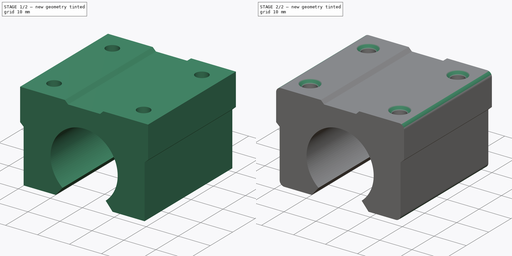
[diagram: build sequence overview — one tinted view per stage of 2, left to right]
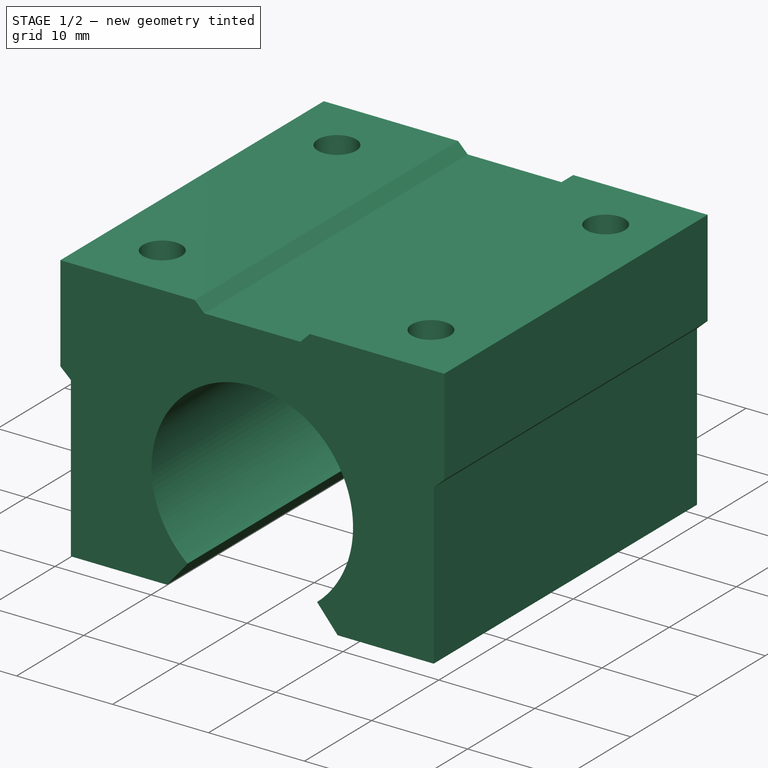
[diagram: stage 1 of 2 — iso view after this stage's code; geometry added in this stage tinted green]
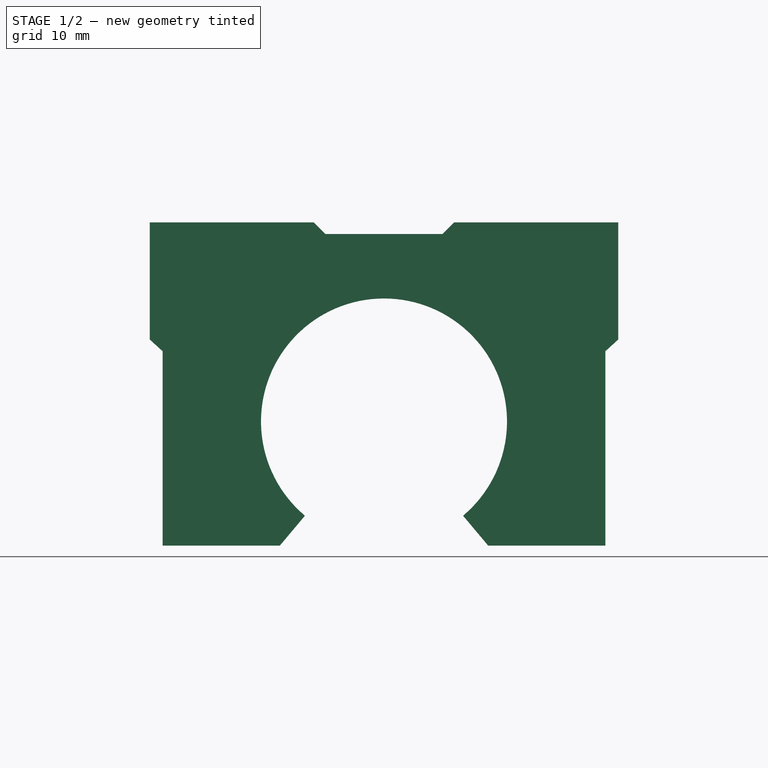
[diagram: stage 1 of 2 — front view after this stage's code; geometry added in this stage tinted green]
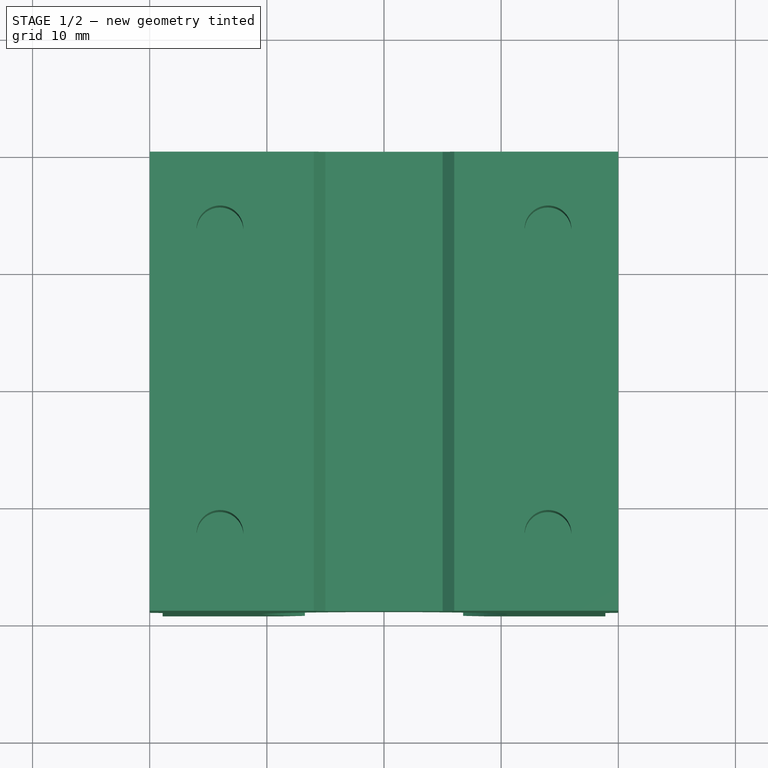
[diagram: stage 1 of 2 — top view after this stage's code; geometry added in this stage tinted green]
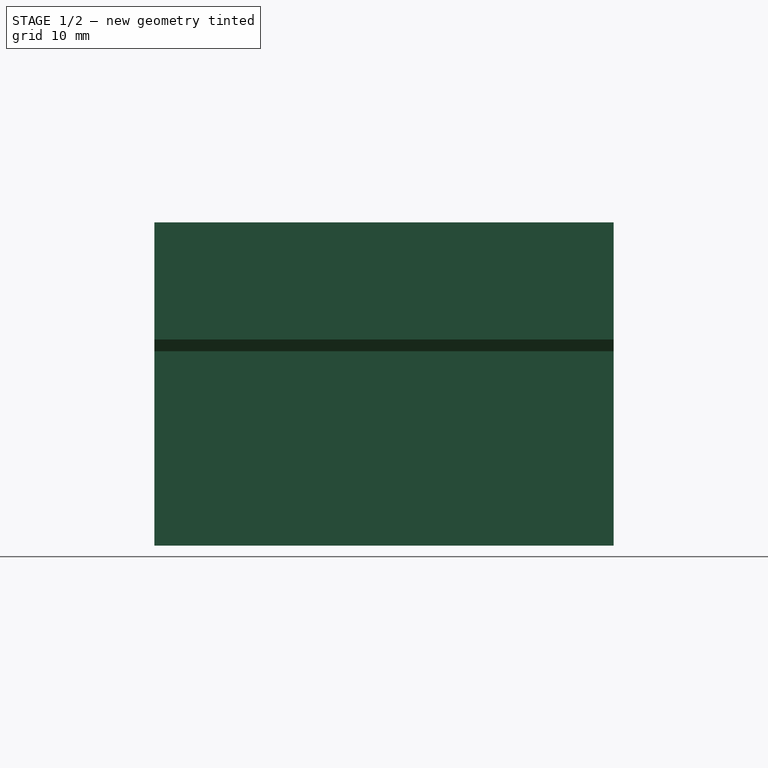
[diagram: stage 1 of 2 — right view after this stage's code; geometry added in this stage tinted green]
FCSTD DOCUMENT  (FreeCAD 0.16R6706 (Git))
Label: SBR12uu
License: All rights reserved
LicenseURL: http://en.wikipedia.org/wiki/All_rights_reserved
objects: Sketcher::SketchObject×2, PartDesign::Pad×1, Part::Feature×1, PartDesign::Pocket×1, PartDesign::Chamfer×1, PartDesign::Fillet×1
note: 9 computed .brp shape members not serialized (recipe doc carries the construction recipe); baked Part::Feature solids carry a one-line shape summary decoded from their .brp

FEATURE [Sketcher::SketchObject] Sketch  label="profil"
  Placement = pos=(0,0,0) rot=(1,0,0;1.5708rad)
  sketch-geometry (24):
    g0: ArcOfCircle CenterX=0 CenterY=0 CenterZ=0 NormalX=0 NormalY=0 NormalZ=1 Radius=10.5 StartAngle=5.41052 EndAngle=10.2974
    g1: LineSegment [constr] StartX=-18.9 StartY=0 StartZ=0 EndX=18.9 EndY=0 EndZ=0
    g2: LineSegment StartX=-20 StartY=17 StartZ=0 EndX=-6 EndY=17 EndZ=0
    g3: LineSegment StartX=-6 StartY=17 StartZ=0 EndX=-5 EndY=16 EndZ=0
    g4: LineSegment StartX=-5 StartY=16 StartZ=0 EndX=5 EndY=16 EndZ=0
    g5: LineSegment StartX=5 StartY=16 StartZ=0 EndX=6 EndY=17 EndZ=0
    g6: LineSegment StartX=6 StartY=17 StartZ=0 EndX=20 EndY=17 EndZ=0
    g7: LineSegment StartX=20 StartY=17 StartZ=0 EndX=20 EndY=7 EndZ=0
    g8: LineSegment StartX=20 StartY=7 StartZ=0 EndX=18.9 EndY=6 EndZ=0
    g9: LineSegment StartX=18.9 StartY=6 StartZ=0 EndX=18.9 EndY=-10.6 EndZ=0
    g10: LineSegment StartX=-18.9 StartY=-10.6 StartZ=0 EndX=-18.9 EndY=6 EndZ=0
    g11: LineSegment StartX=-18.9 StartY=6 StartZ=0 EndX=-20 EndY=7 EndZ=0
    g12: LineSegment StartX=-20 StartY=7 StartZ=0 EndX=-20 EndY=17 EndZ=0
    g13: LineSegment [constr] StartX=-18.9 StartY=-10.6 StartZ=0 EndX=18.9 EndY=-10.6 EndZ=0
    g14: LineSegment [constr] StartX=-20 StartY=17 StartZ=0 EndX=20 EndY=17 EndZ=0
    g15: GeomPoint [constr] X=0 Y=16 Z=0
    g16: LineSegment [constr] StartX=-20 StartY=7 StartZ=0 EndX=20 EndY=7 EndZ=0
    g17: LineSegment StartX=-18.9 StartY=-10.6 StartZ=0 EndX=-8.89446 EndY=-10.6 EndZ=0
    g18: LineSegment StartX=18.9 StartY=-10.6 StartZ=0 EndX=8.89446 EndY=-10.6 EndZ=0
    g19: LineSegment [constr] StartX=0 StartY=0 StartZ=0 EndX=-8.89446 EndY=-10.6 EndZ=0
    g20: LineSegment [constr] StartX=0 StartY=0 StartZ=0 EndX=8.89446 EndY=-10.6 EndZ=0
    g21: LineSegment StartX=-6.74927 StartY=-8.04347 StartZ=0 EndX=-8.89446 EndY=-10.6 EndZ=0
    g22: LineSegment StartX=6.74927 StartY=-8.04347 StartZ=0 EndX=8.89446 EndY=-10.6 EndZ=0
    g23: LineSegment [constr] StartX=-18.9 StartY=6 StartZ=0 EndX=18.9 EndY=6 EndZ=0
  constraints (66):
    c: Radius(g0) = 10.5
    c: Vertical(g10)
    c: Coincident(g13,g10)
    c: Coincident(g9,g13)
    c: Horizontal(g13)
    c: Equal(g2,g6)
    c: Horizontal(g2)
    c: Horizontal(g6)
    c: Horizontal(g4)
    c: Coincident(g4,g5)
    c: Coincident(g5,g6)
    c: Coincident(g3,g2)
    c: Coincident(g3,g4)
    c: Coincident(g12,g2)
    c: Coincident(g12,g11)
    c: Vertical(g12)
    c: Coincident(g11,g10)
    c: Coincident(g6,g7)
    c: Vertical(g7)
    c: Coincident(g7,g8)
    c: Coincident(g8,g9)
    c: Vertical(g9)
    c: Equal(g11,g8)
    c: Coincident(g14,g2)
    c: Coincident(g14,g6)
    c: Horizontal(g14)
    c: PointOnObject(g15,g4)
    c: Symmetric(g4,g4,g15)
    c: PointOnObject(g15,g-2)
    c: Coincident(g16,g7)
    c: Horizontal(g16)
    c: Coincident(g11,g16)
    c: PointOnObject(g1,g10)
    c: PointOnObject(g1,g9)
    c: DistanceX(g2,g6) = 40
    c: DistanceY(g4,g5) = 1
    c: DistanceY(g1,g6) = 17
    c: Horizontal(g1)
    c: Coincident(g0,g-1)
    c: PointOnObject(g-1,g1)
    c: DistanceY(g7,g6) = 10
    c: DistanceY(g9,g6) = 27.6
    c: DistanceX(g13,g13) = 37.8
    c: DistanceX(g5,g6) = 14
    c: Coincident(g17,g10)
    c: Coincident(g18,g9)
    c: Coincident(g19,g-1)
    c: PointOnObject(g19,g13)
    c: PointOnObject(g20,g13)
    c: Angle(g19,g20) = 1.39626
    c: PointOnObject(g0,g20)
    c: PointOnObject(g0,g19)
    c: Coincident(g17,g19)
    c: Coincident(g18,g20)
    c: Equal(g17,g18)
    c: Coincident(g20,g-1)
    c: Coincident(g21,g0)
    c: Coincident(g21,g17)
    c: Coincident(g22,g0)
    c: Coincident(g22,g18)
    c: Coincident(g23,g10)
    c: Coincident(g23,g8)
    c: Horizontal(g23)
    c: DistanceY(g8,g6) = 11
    c: DistanceX(g4,g5) = 1
    c: DistanceX(g2,g3) = 1
FEATURE [PartDesign::Pad] Pad
  Length = 39.2
  Length2 = 100
  Placement = pos=(0,0,0) rot=(1,0,0;1.5708rad)
  Sketch = -> Sketch
  Type = 0
FEATURE [Part::Feature] Part__Feature  label="LM12uu001"
  Placement = pos=(-1.3,-17,0) rot=(0,0,1;0rad)
  shape: bbox 21 x 30 x 21 mm, 20 faces (baked)
FEATURE [Sketcher::SketchObject] Sketch001
  ExternalGeometry = -> [Pad]
  Placement = pos=(0,0,17) rot=(0,0,1;3.14159rad)
  Support = -> Pad [Face7]
  sketch-geometry (9):
    g0: GeomPoint [constr] X=-6 Y=19.6 Z=0
    g1: LineSegment [constr] StartX=-14 StartY=19.6 StartZ=0 EndX=14 EndY=19.6 EndZ=0
    g2: GeomPoint [constr] X=0 Y=19.6 Z=0
    g3: LineSegment [constr] StartX=-14 StartY=32.6 StartZ=0 EndX=-14 EndY=6.6 EndZ=0
    g4: LineSegment [constr] StartX=14 StartY=32.6 StartZ=0 EndX=14 EndY=6.6 EndZ=0
    g5: Circle CenterX=-14 CenterY=32.6 CenterZ=0 NormalX=0 NormalY=0 NormalZ=1 Radius=2
    g6: Circle CenterX=-14 CenterY=6.6 CenterZ=0 NormalX=0 NormalY=0 NormalZ=1 Radius=2
    g7: Circle CenterX=14 CenterY=32.6 CenterZ=0 NormalX=0 NormalY=0 NormalZ=1 Radius=2
    g8: Circle CenterX=14 CenterY=6.6 CenterZ=0 NormalX=0 NormalY=0 NormalZ=1 Radius=2
  constraints (24):
    c: PointOnObject(g0,g-3)
    c: Symmetric(g-3,g-3,g0)
    c: Horizontal(g1)
    c: PointOnObject(g0,g1)
    c: PointOnObject(g2,g-2)
    c: PointOnObject(g2,g1)
    c: Symmetric(g1,g1,g2)
    c: DistanceX(g1,g1) = 28
    c: Vertical(g3)
    c: Vertical(g4)
    c: PointOnObject(g1,g3)
    c: PointOnObject(g1,g4)
    c: Symmetric(g4,g4,g1)
    c: Symmetric(g3,g3,g1)
    c: Equal(g3,g4)
    c: DistanceY(g3,g3) = 26
    c: Coincident(g5,g3)
    c: Coincident(g6,g3)
    c: Coincident(g7,g4)
    c: Coincident(g8,g4)
    c: Equal(g5,g6)
    c: Equal(g6,g8)
    c: Equal(g8,g7)
    c: Radius(g5) = 2
FEATURE [PartDesign::Pocket] Pocket
  Length = 10
  Placement = pos=(0,0,0) rot=(1,0,0;1.5708rad)
  Sketch = -> Sketch001
  Type = 0
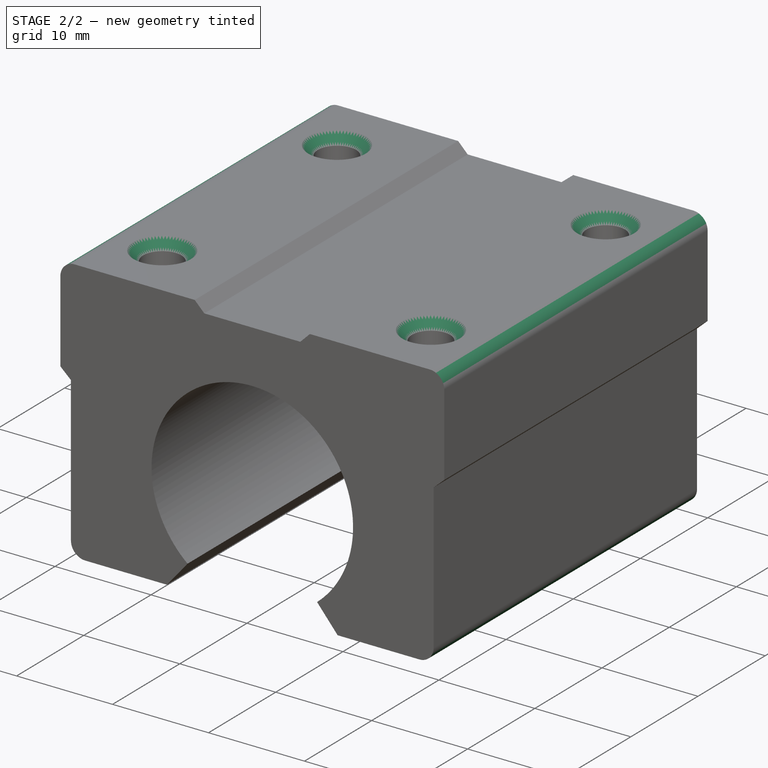
[diagram: stage 2 of 2 — iso view after this stage's code; geometry added in this stage tinted green]
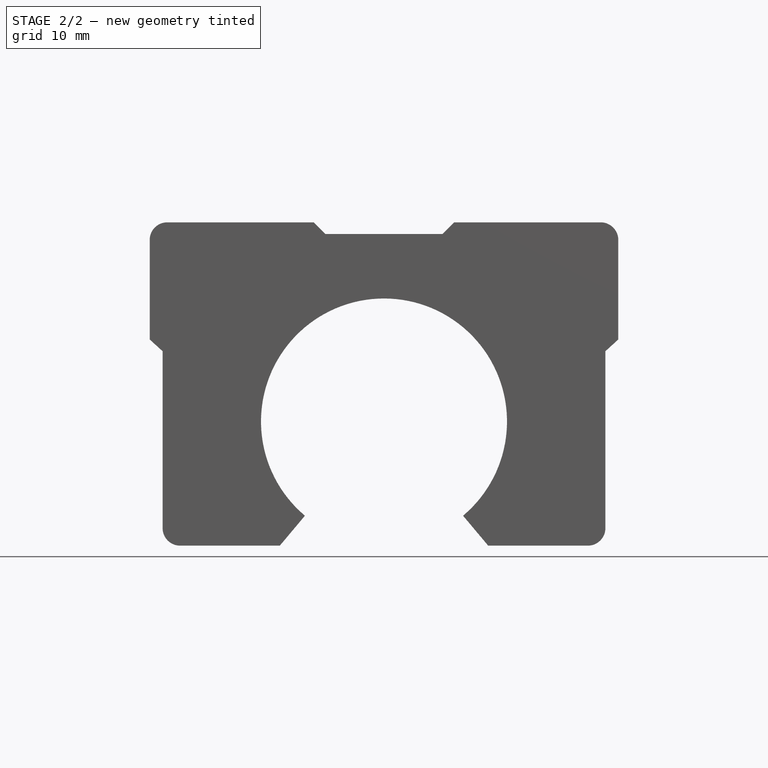
[diagram: stage 2 of 2 — front view after this stage's code; geometry added in this stage tinted green]
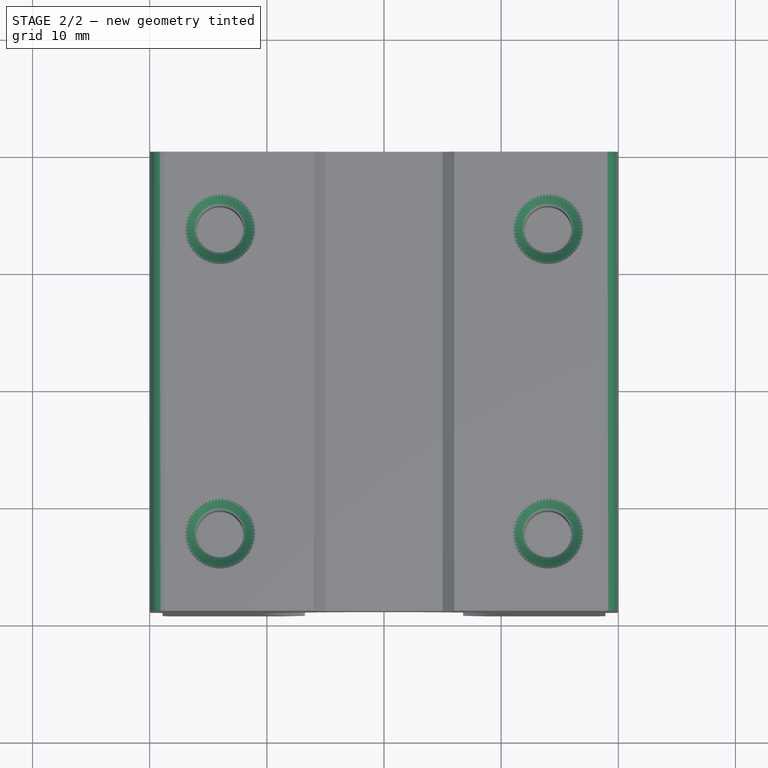
[diagram: stage 2 of 2 — top view after this stage's code; geometry added in this stage tinted green]
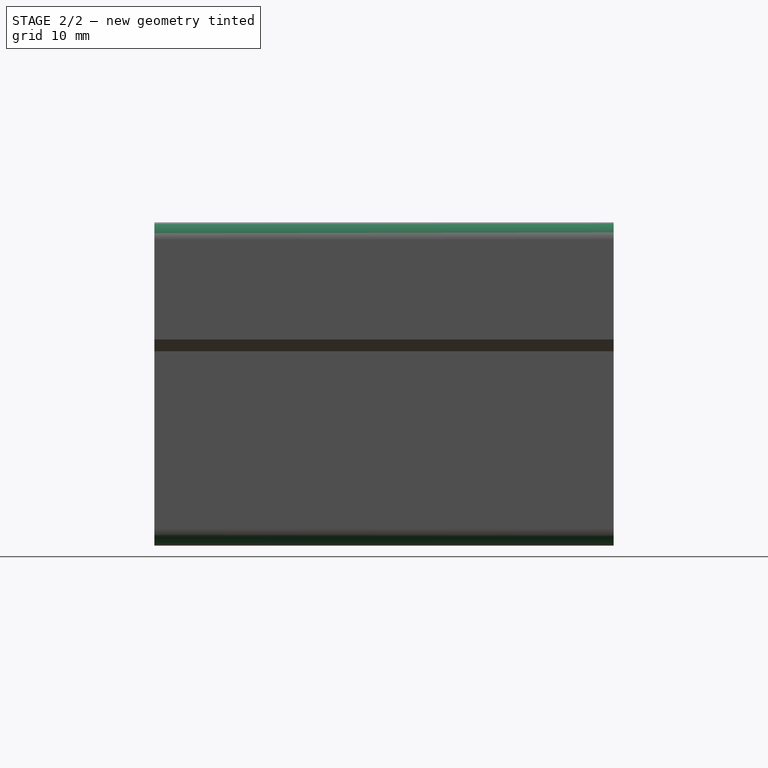
[diagram: stage 2 of 2 — right view after this stage's code; geometry added in this stage tinted green]
FEATURE [PartDesign::Chamfer] Chamfer
  Base = -> Pocket [Edge50,Edge49,Edge43,Edge44]
  Placement = pos=(0,0,0) rot=(1,0,0;1.5708rad)
  Size = 1
FEATURE [PartDesign::Fillet] Fillet
  Base = -> Chamfer [Edge53,Edge2,Edge49,Edge57]
  Placement = pos=(0,0,0) rot=(1,0,0;1.5708rad)
  Radius = 1.5
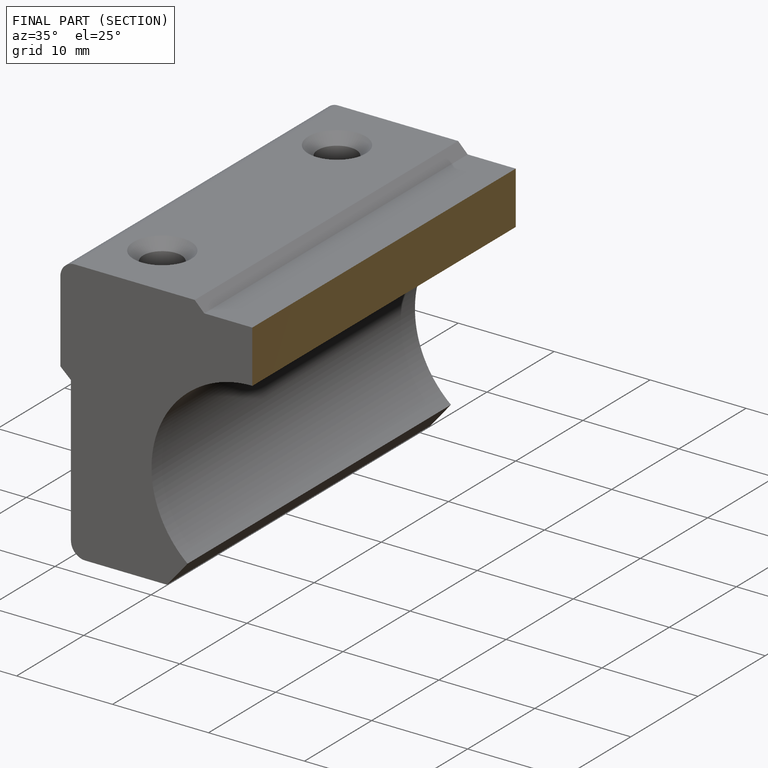
[diagram: finished part — half-section view (interior)]
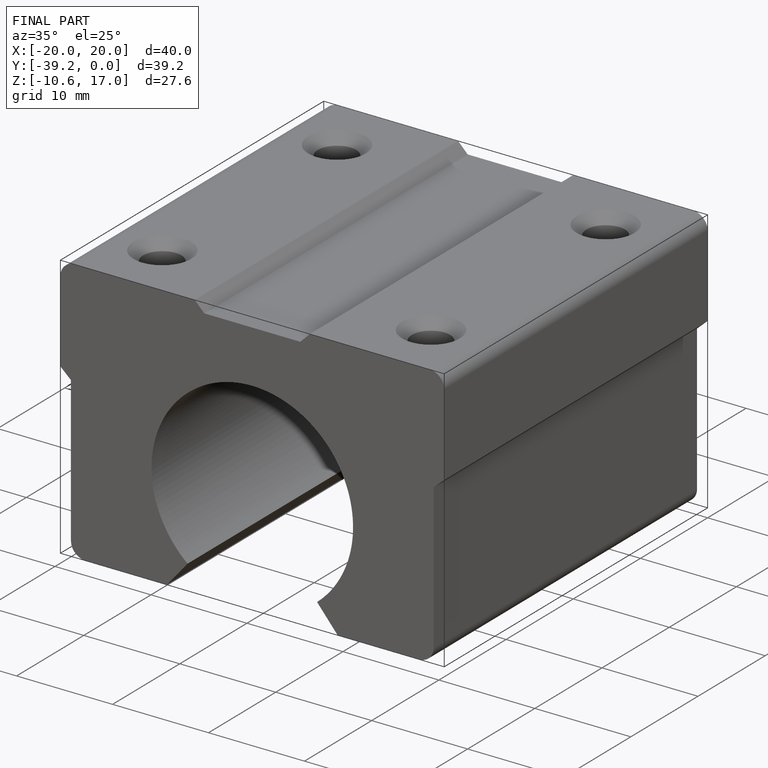
[diagram: finished part — iso view with bounding-box wireframe]
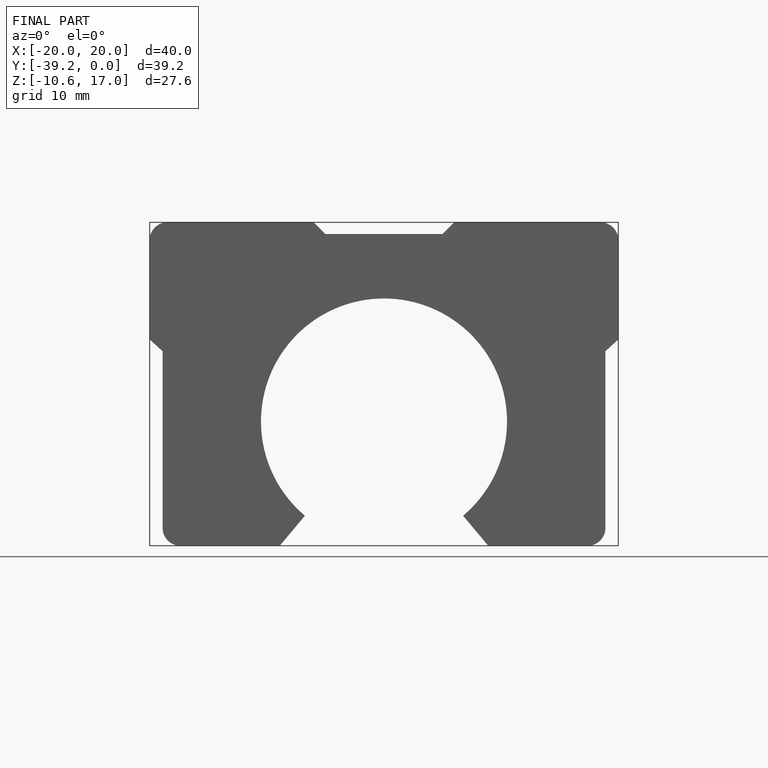
[diagram: finished part — front view with bounding-box wireframe]
